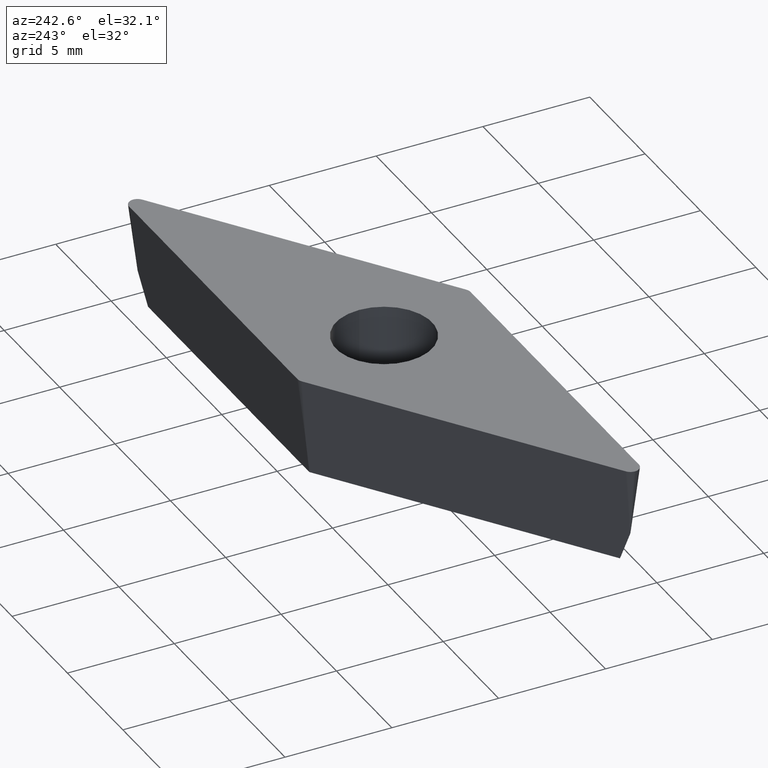
[diagram: clean part render]
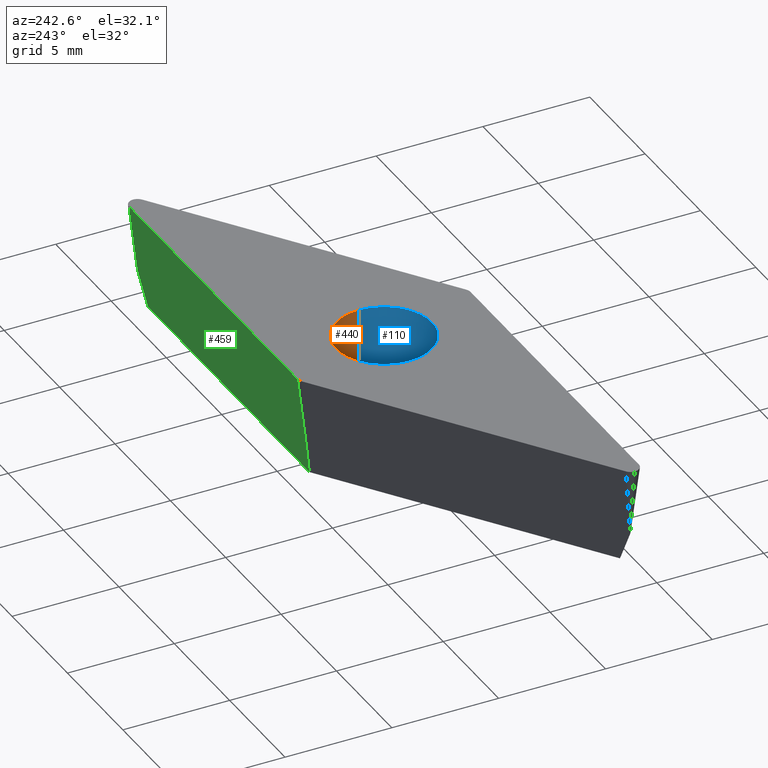
[diagram: same view with three faces highlighted in distinct colors, each labeled with its STEP entity id]
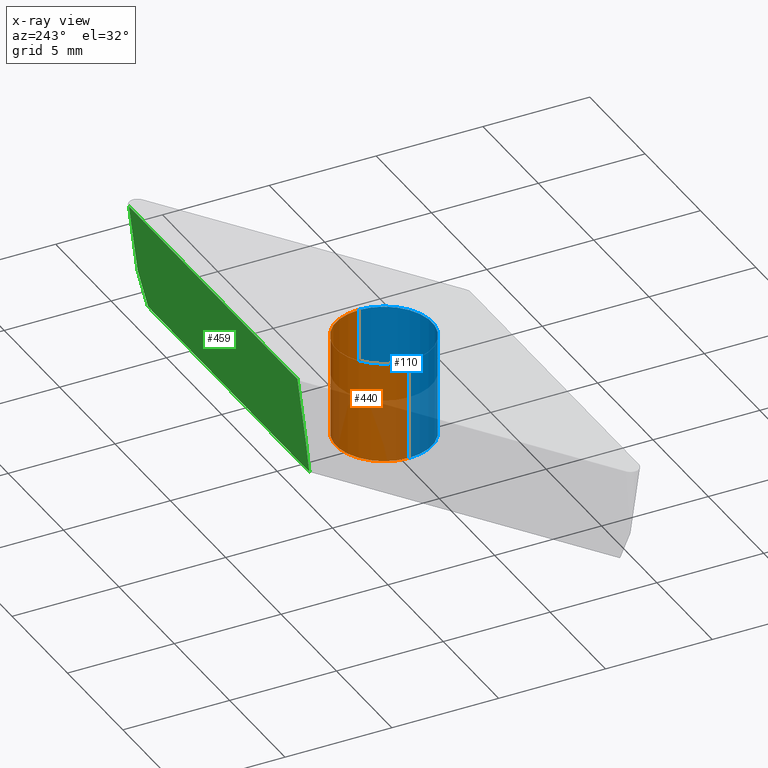
[diagram: x-ray of the same camera — body ghosted, the three highlighted faces saturated]
A machine part, auxiliary view with three faces highlighted in distinct colors.
The next image is the same camera in x-ray (body ghosted, the three faces saturated) — at least one of them is partly hidden behind the body in this view.
Their STEP definitions:

[orange] entity #440 — the highlighted cylindrical surface (partial cylindrical patch) has radius 2.25 mm, axis along (0, 0, 1).
#7 = ORIENTED_EDGE ( 'NONE', *, *, #414, .F. ) ;
#10 = LINE ( 'NONE', #37, #119 ) ;
#14 = DIRECTION ( 'NONE',  ( 1.000000000000000000, 0.0000000000000000000, 0.0000000000000000000 ) ) ;
#17 = DIRECTION ( 'NONE',  ( 0.0000000000000000000, 0.0000000000000000000, 1.000000000000000000 ) ) ;
#27 = FACE_OUTER_BOUND ( 'NONE', #454, .T. ) ;
#37 = CARTESIAN_POINT ( 'NONE',  ( -2.250000000000000000, 2.755455298081544300E-016, -4.759999999999999800 ) ) ;
#78 = CARTESIAN_POINT ( 'NONE',  ( 0.0000000000000000000, 0.0000000000000000000, -4.759999999999999800 ) ) ;
#97 = CYLINDRICAL_SURFACE ( 'NONE', #389, 2.250000000000000000 ) ;
#115 = ORIENTED_EDGE ( 'NONE', *, *, #368, .T. ) ;
#116 = DIRECTION ( 'NONE',  ( 0.0000000000000000000, 0.0000000000000000000, 1.000000000000000000 ) ) ;
#118 = DIRECTION ( 'NONE',  ( 0.0000000000000000000, 0.0000000000000000000, 1.000000000000000000 ) ) ;
#119 = VECTOR ( 'NONE', #17, 1000.000000000000000 ) ;
#153 = DIRECTION ( 'NONE',  ( 1.000000000000000000, 0.0000000000000000000, 0.0000000000000000000 ) ) ;
#162 = CIRCLE ( 'NONE', #313, 2.250000000000000000 ) ;
#163 = CARTESIAN_POINT ( 'NONE',  ( -2.250000000000000000, 2.755455298081544300E-016, 0.0000000000000000000 ) ) ;
#177 = CIRCLE ( 'NONE', #279, 2.250000000000000000 ) ;
#183 = LINE ( 'NONE', #431, #191 ) ;
#191 = VECTOR ( 'NONE', #118, 1000.000000000000000 ) ;
#206 = CARTESIAN_POINT ( 'NONE',  ( 2.250000000000000000, 0.0000000000000000000, 0.0000000000000000000 ) ) ;
#230 = DIRECTION ( 'NONE',  ( 1.000000000000000000, 0.0000000000000000000, 0.0000000000000000000 ) ) ;
#231 = ORIENTED_EDGE ( 'NONE', *, *, #387, .F. ) ;
#235 = DIRECTION ( 'NONE',  ( 0.0000000000000000000, 0.0000000000000000000, 1.000000000000000000 ) ) ;
#239 = CARTESIAN_POINT ( 'NONE',  ( 0.0000000000000000000, 0.0000000000000000000, 0.0000000000000000000 ) ) ;
#249 = CARTESIAN_POINT ( 'NONE',  ( -2.250000000000000000, 2.755455298081544300E-016, -4.759999999999999800 ) ) ;
#253 = CARTESIAN_POINT ( 'NONE',  ( 2.250000000000000000, 0.0000000000000000000, -4.759999999999999800 ) ) ;
#262 = VERTEX_POINT ( 'NONE', #249 ) ;
#279 = AXIS2_PLACEMENT_3D ( 'NONE', #239, #235, #230 ) ;
#313 = AXIS2_PLACEMENT_3D ( 'NONE', #464, #473, #14 ) ;
#341 = EDGE_CURVE ( 'NONE', #374, #360, #183, .T. ) ;
#359 = VERTEX_POINT ( 'NONE', #163 ) ;
#360 = VERTEX_POINT ( 'NONE', #206 ) ;
#368 = EDGE_CURVE ( 'NONE', #360, #359, #177, .T. ) ;
#374 = VERTEX_POINT ( 'NONE', #253 ) ;
#387 = EDGE_CURVE ( 'NONE', #374, #262, #162, .T. ) ;
#389 = AXIS2_PLACEMENT_3D ( 'NONE', #78, #116, #153 ) ;
#395 = ORIENTED_EDGE ( 'NONE', *, *, #341, .T. ) ;
#414 = EDGE_CURVE ( 'NONE', #262, #359, #10, .T. ) ;
#431 = CARTESIAN_POINT ( 'NONE',  ( 2.250000000000000000, 0.0000000000000000000, -4.759999999999999800 ) ) ;
#440 = ADVANCED_FACE ( 'NONE', ( #27 ), #97, .F. ) ;
#454 = EDGE_LOOP ( 'NONE', ( #7, #231, #395, #115 ) ) ;
#464 = CARTESIAN_POINT ( 'NONE',  ( 0.0000000000000000000, 0.0000000000000000000, -4.759999999999999800 ) ) ;
#473 = DIRECTION ( 'NONE',  ( 0.0000000000000000000, 0.0000000000000000000, 1.000000000000000000 ) ) ;

[blue] entity #110 — the highlighted cylindrical surface (partial cylindrical patch) has radius 2.25 mm, axis along (0, 0, 1).
#9 = CARTESIAN_POINT ( 'NONE',  ( 0.0000000000000000000, 0.0000000000000000000, -4.759999999999999800 ) ) ;
#10 = LINE ( 'NONE', #37, #119 ) ;
#17 = DIRECTION ( 'NONE',  ( 0.0000000000000000000, 0.0000000000000000000, 1.000000000000000000 ) ) ;
#22 = CIRCLE ( 'NONE', #303, 2.250000000000000000 ) ;
#37 = CARTESIAN_POINT ( 'NONE',  ( -2.250000000000000000, 2.755455298081544300E-016, -4.759999999999999800 ) ) ;
#47 = EDGE_LOOP ( 'NONE', ( #353, #362, #366, #367 ) ) ;
#50 = DIRECTION ( 'NONE',  ( 0.0000000000000000000, 0.0000000000000000000, 1.000000000000000000 ) ) ;
#55 = CARTESIAN_POINT ( 'NONE',  ( 0.0000000000000000000, 0.0000000000000000000, -4.759999999999999800 ) ) ;
#71 = DIRECTION ( 'NONE',  ( 1.000000000000000000, 0.0000000000000000000, 0.0000000000000000000 ) ) ;
#110 = ADVANCED_FACE ( 'NONE', ( #271 ), #234, .F. ) ;
#118 = DIRECTION ( 'NONE',  ( 0.0000000000000000000, 0.0000000000000000000, 1.000000000000000000 ) ) ;
#119 = VECTOR ( 'NONE', #17, 1000.000000000000000 ) ;
#147 = CIRCLE ( 'NONE', #309, 2.250000000000000000 ) ;
#163 = CARTESIAN_POINT ( 'NONE',  ( -2.250000000000000000, 2.755455298081544300E-016, 0.0000000000000000000 ) ) ;
#183 = LINE ( 'NONE', #431, #191 ) ;
#191 = VECTOR ( 'NONE', #118, 1000.000000000000000 ) ;
#206 = CARTESIAN_POINT ( 'NONE',  ( 2.250000000000000000, 0.0000000000000000000, 0.0000000000000000000 ) ) ;
#234 = CYLINDRICAL_SURFACE ( 'NONE', #339, 2.250000000000000000 ) ;
#249 = CARTESIAN_POINT ( 'NONE',  ( -2.250000000000000000, 2.755455298081544300E-016, -4.759999999999999800 ) ) ;
#253 = CARTESIAN_POINT ( 'NONE',  ( 2.250000000000000000, 0.0000000000000000000, -4.759999999999999800 ) ) ;
#262 = VERTEX_POINT ( 'NONE', #249 ) ;
#271 = FACE_OUTER_BOUND ( 'NONE', #47, .T. ) ;
#277 = DIRECTION ( 'NONE',  ( 0.0000000000000000000, 0.0000000000000000000, 1.000000000000000000 ) ) ;
#303 = AXIS2_PLACEMENT_3D ( 'NONE', #422, #390, #386 ) ;
#309 = AXIS2_PLACEMENT_3D ( 'NONE', #55, #50, #439 ) ;
#339 = AXIS2_PLACEMENT_3D ( 'NONE', #9, #277, #71 ) ;
#341 = EDGE_CURVE ( 'NONE', #374, #360, #183, .T. ) ;
#353 = ORIENTED_EDGE ( 'NONE', *, *, #403, .F. ) ;
#359 = VERTEX_POINT ( 'NONE', #163 ) ;
#360 = VERTEX_POINT ( 'NONE', #206 ) ;
#362 = ORIENTED_EDGE ( 'NONE', *, *, #414, .T. ) ;
#366 = ORIENTED_EDGE ( 'NONE', *, *, #420, .T. ) ;
#367 = ORIENTED_EDGE ( 'NONE', *, *, #341, .F. ) ;
#374 = VERTEX_POINT ( 'NONE', #253 ) ;
#386 = DIRECTION ( 'NONE',  ( 1.000000000000000000, 0.0000000000000000000, 0.0000000000000000000 ) ) ;
#390 = DIRECTION ( 'NONE',  ( 0.0000000000000000000, 0.0000000000000000000, 1.000000000000000000 ) ) ;
#403 = EDGE_CURVE ( 'NONE', #262, #374, #147, .T. ) ;
#414 = EDGE_CURVE ( 'NONE', #262, #359, #10, .T. ) ;
#420 = EDGE_CURVE ( 'NONE', #359, #360, #22, .T. ) ;
#422 = CARTESIAN_POINT ( 'NONE',  ( 0.0000000000000000000, 0.0000000000000000000, 0.0000000000000000000 ) ) ;
#431 = CARTESIAN_POINT ( 'NONE',  ( 2.250000000000000000, 0.0000000000000000000, -4.759999999999999800 ) ) ;
#439 = DIRECTION ( 'NONE',  ( 1.000000000000000000, 0.0000000000000000000, 0.0000000000000000000 ) ) ;

[green] entity #459 — the highlighted face is a freeform B-spline surface patch.
#13 = CARTESIAN_POINT ( 'NONE',  ( 13.83608232530964200, 4.762500000000003700, 0.0000000000000000000 ) ) ;
#15 = EDGE_LOOP ( 'NONE', ( #401, #406, #408, #411, #418, #419 ) ) ;
#30 = CARTESIAN_POINT ( 'NONE',  ( 13.83608232530964300, 4.362500000000005200, -3.257738571189814800 ) ) ;
#36 = CARTESIAN_POINT ( 'NONE',  ( -1.375490966484558700, 4.762499999999999300, 0.0000000000000000000 ) ) ;
#40 = CARTESIAN_POINT ( 'NONE',  ( 8.765557894711575300, 4.762500000000003700, 0.0000000000000000000 ) ) ;
#42 = VERTEX_POINT ( 'NONE', #13 ) ;
#44 = CARTESIAN_POINT ( 'NONE',  ( -1.375490966484558500, 4.061154588122606800, -5.711999999999998900 ) ) ;
#49 = CARTESIAN_POINT ( 'NONE',  ( 3.538800664874899700, 4.178045490102172200, -4.759999999999998900 ) ) ;
#54 = CARTESIAN_POINT ( 'NONE',  ( 3.695033464113509400, 4.061154588122606800, -5.711999999999998900 ) ) ;
#56 = CARTESIAN_POINT ( 'NONE',  ( 13.25106736044576300, 4.178045490102176600, -4.760000000000000700 ) ) ;
#64 = CARTESIAN_POINT ( 'NONE',  ( -1.317332682910531600, 4.178045490102173100, -4.760000000000000700 ) ) ;
#66 = EDGE_CURVE ( 'NONE', #280, #141, #337, .T. ) ;
#81 = FACE_OUTER_BOUND ( 'NONE', #15, .T. ) ;
#114 = CARTESIAN_POINT ( 'NONE',  ( -1.356104871959882500, 4.301015163367398300, -3.758492380793154300 ) ) ;
#132 = VECTOR ( 'NONE', #182, 1000.000000000000000 ) ;
#134 = VECTOR ( 'NONE', #322, 1000.000000000000000 ) ;
#141 = VERTEX_POINT ( 'NONE', #159 ) ;
#159 = CARTESIAN_POINT ( 'NONE',  ( -1.375490966484563800, 4.362500000000008700, -3.257738571189731800 ) ) ;
#166 = LINE ( 'NONE', #36, #132 ) ;
#168 = CARTESIAN_POINT ( 'NONE',  ( -1.375490966484558700, 4.762499999999999300, 0.0000000000000000000 ) ) ;
#170 = CARTESIAN_POINT ( 'NONE',  ( 3.695033464113509900, 4.762499999999999300, 0.0000000000000000000 ) ) ;
#172 = EDGE_CURVE ( 'NONE', #404, #421, #376, .T. ) ;
#180 = LINE ( 'NONE', #442, #134 ) ;
#181 = B_SPLINE_SURFACE_WITH_KNOTS ( 'NONE', 1, 3, ( 
 ( #184, #40, #170, #168 ),
 ( #310, #308, #54, #44 ) ),
 .UNSPECIFIED., .F., .F., .F.,
 ( 2, 2 ),
 ( 4, 4 ),
 ( 0.0000000000000000000, 1.000000000000000000 ),
 ( -0.01533769280734578900, -0.0001261195155515895400 ),
 .UNSPECIFIED. ) ;
#182 = DIRECTION ( 'NONE',  ( -3.182665913166247500E-017, 0.1218693434051477400, 0.9925461516413219800 ) ) ;
#184 = CARTESIAN_POINT ( 'NONE',  ( 13.83608232530964200, 4.762500000000003700, 0.0000000000000000000 ) ) ;
#192 = VECTOR ( 'NONE', #302, 1000.000000000000000 ) ;
#222 = CARTESIAN_POINT ( 'NONE',  ( -1.317332682910531600, 4.178045490102173100, -4.760000000000000700 ) ) ;
#254 = LINE ( 'NONE', #324, #192 ) ;
#280 = VERTEX_POINT ( 'NONE', #222 ) ;
#297 = CARTESIAN_POINT ( 'NONE',  ( -1.375490966484563800, 4.362500000000008700, -3.257738571189731800 ) ) ;
#302 = DIRECTION ( 'NONE',  ( 3.182665913166247500E-017, -0.1218693434051477400, -0.9925461516413219800 ) ) ;
#308 = CARTESIAN_POINT ( 'NONE',  ( 8.765557894711575300, 4.061154588122611200, -5.711999999999998900 ) ) ;
#310 = CARTESIAN_POINT ( 'NONE',  ( 13.83608232530964200, 4.061154588122611200, -5.711999999999998900 ) ) ;
#311 = CARTESIAN_POINT ( 'NONE',  ( 8.394934012660328900, 4.178045490102176600, -4.759999999999998900 ) ) ;
#314 = CARTESIAN_POINT ( 'NONE',  ( 13.44607234873361700, 4.239530326734791500, -4.259246190396564400 ) ) ;
#315 = CARTESIAN_POINT ( 'NONE',  ( 13.25106736044576300, 4.178045490102176600, -4.760000000000000700 ) ) ;
#318 = CARTESIAN_POINT ( 'NONE',  ( -1.336718777435206700, 4.239530326734785200, -4.259246190396577700 ) ) ;
#322 = DIRECTION ( 'NONE',  ( -1.000000000000000000, -2.611539394764484900E-016, -0.0000000000000000000 ) ) ;
#324 = CARTESIAN_POINT ( 'NONE',  ( 13.83608232530964200, 4.762500000000003700, 0.0000000000000000000 ) ) ;
#325 = CARTESIAN_POINT ( 'NONE',  ( -1.317332682910531600, 4.178045490102173100, -4.760000000000000700 ) ) ;
#337 = B_SPLINE_CURVE_WITH_KNOTS ( 'NONE', 3,
 ( #64, #318, #114, #297 ),
 .UNSPECIFIED., .F., .F.,
 ( 4, 4 ),
 ( 0.0000000000000000000, 0.001514660111266220100 ),
 .UNSPECIFIED. ) ;
#344 = VERTEX_POINT ( 'NONE', #428 ) ;
#363 = EDGE_CURVE ( 'NONE', #42, #421, #254, .T. ) ;
#376 = B_SPLINE_CURVE_WITH_KNOTS ( 'NONE', 3,
 ( #56, #314, #475, #30 ),
 .UNSPECIFIED., .F., .F.,
 ( 4, 4 ),
 ( 8.673617379884035500E-019, 0.001622669213310943800 ),
 .UNSPECIFIED. ) ;
#382 = B_SPLINE_CURVE_WITH_KNOTS ( 'NONE', 3,
 ( #315, #311, #49, #325 ),
 .UNSPECIFIED., .F., .F.,
 ( 4, 4 ),
 ( 1.734723475976807100E-018, 0.01456840004335629300 ),
 .UNSPECIFIED. ) ;
#397 = EDGE_CURVE ( 'NONE', #42, #344, #180, .T. ) ;
#398 = EDGE_CURVE ( 'NONE', #141, #344, #166, .T. ) ;
#401 = ORIENTED_EDGE ( 'NONE', *, *, #430, .T. ) ;
#404 = VERTEX_POINT ( 'NONE', #423 ) ;
#406 = ORIENTED_EDGE ( 'NONE', *, *, #66, .T. ) ;
#408 = ORIENTED_EDGE ( 'NONE', *, *, #398, .T. ) ;
#411 = ORIENTED_EDGE ( 'NONE', *, *, #397, .F. ) ;
#418 = ORIENTED_EDGE ( 'NONE', *, *, #363, .T. ) ;
#419 = ORIENTED_EDGE ( 'NONE', *, *, #172, .F. ) ;
#421 = VERTEX_POINT ( 'NONE', #470 ) ;
#423 = CARTESIAN_POINT ( 'NONE',  ( 13.25106736044576300, 4.178045490102176600, -4.760000000000000700 ) ) ;
#428 = CARTESIAN_POINT ( 'NONE',  ( -1.375490966484558500, 4.762499999999999300, 0.0000000000000000000 ) ) ;
#430 = EDGE_CURVE ( 'NONE', #404, #280, #382, .T. ) ;
#442 = CARTESIAN_POINT ( 'NONE',  ( -1.501610482036148000, 4.762499999999999300, 0.0000000000000000000 ) ) ;
#459 = ADVANCED_FACE ( 'NONE', ( #81 ), #181, .T. ) ;
#470 = CARTESIAN_POINT ( 'NONE',  ( 13.83608232530964300, 4.362500000000005200, -3.257738571189814800 ) ) ;
#475 = CARTESIAN_POINT ( 'NONE',  ( 13.64107733702156900, 4.301015163367401000, -3.758492380793166300 ) ) ;